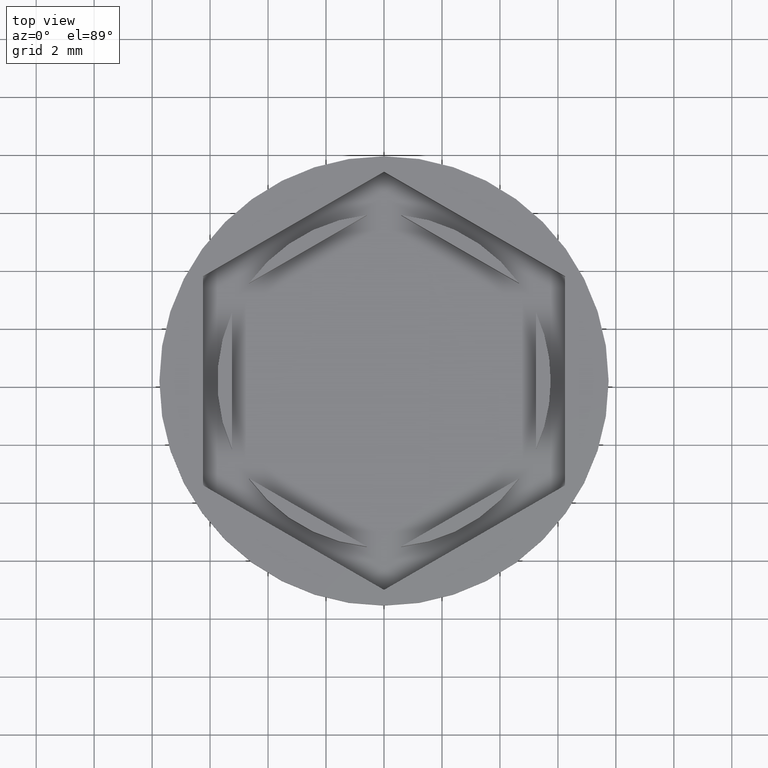
[diagram: clean part render]
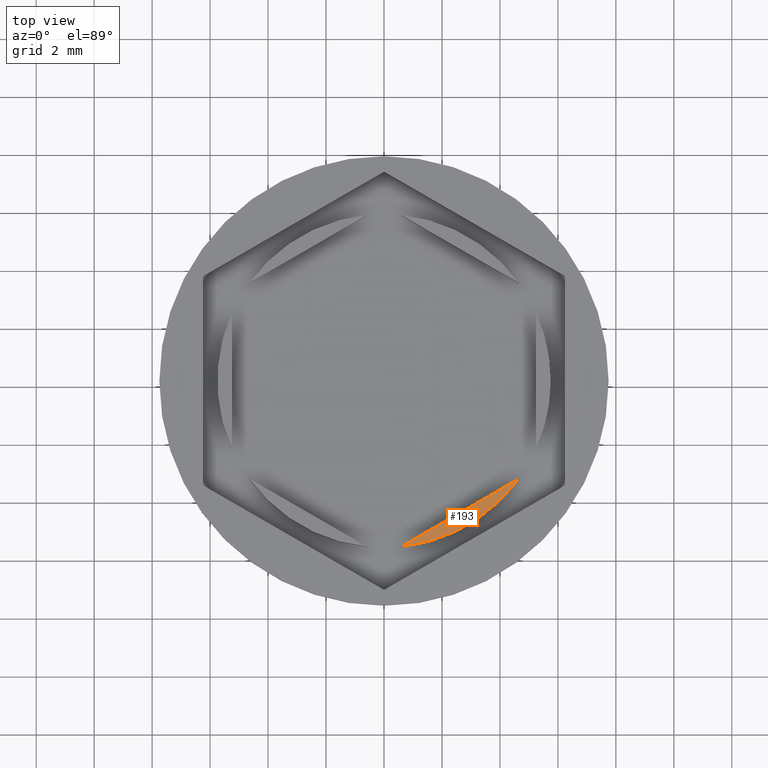
[diagram: same view with one face highlighted and labeled with its STEP entity id]
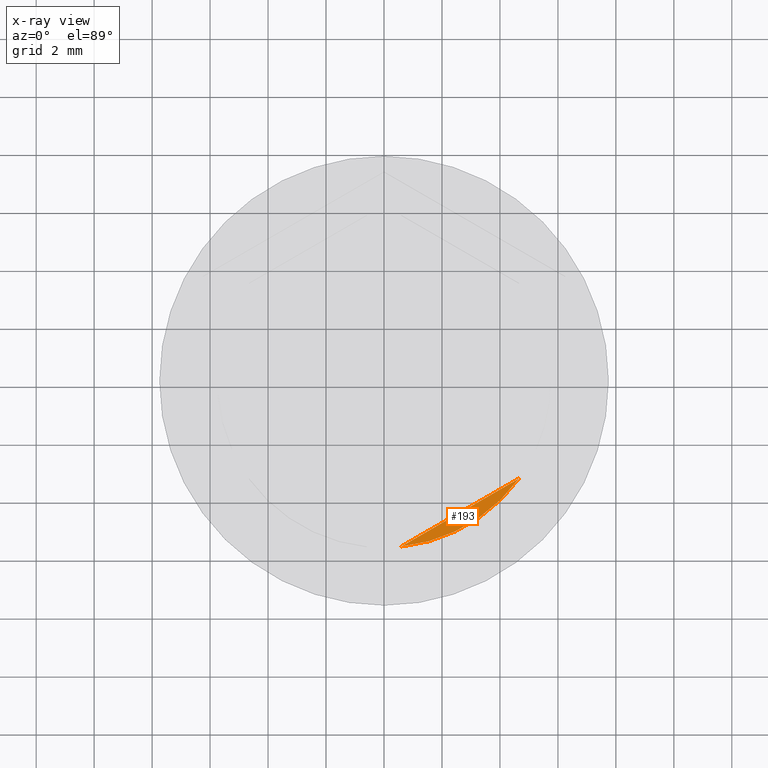
[diagram: x-ray of the same camera — body ghosted, the highlighted face saturated]
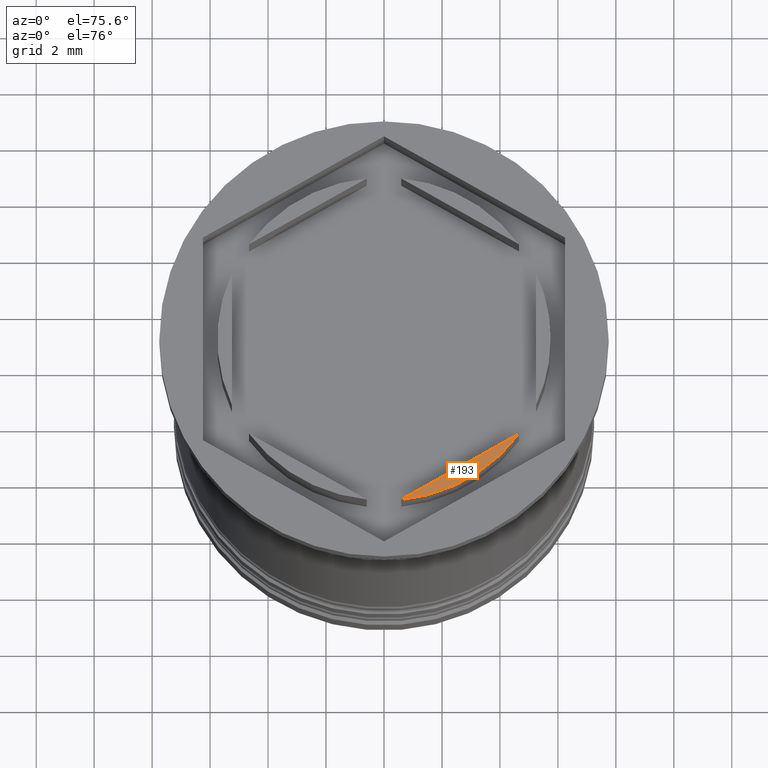
[diagram: same view with one face highlighted and labeled with its STEP entity id]
A machine part, top view. The second image highlights one B-rep face of the part: STEP entity #193.
The next image is the same camera in x-ray: the body ghosted, the highlighted face saturated — about 0% of this face is hidden behind the body in this view.
A second angle (auxiliary view) of the same face is appended — the face is thin or edge-on in the first view.
In plain terms, the highlighted planar face has unit normal (0, -0, 1).
Its self-contained STEP definition (entity closure, byte-faithful):
#105 = AXIS2_PLACEMENT_3D ( 'NONE', #1697, #908, #1518 ) ;
#193 = ADVANCED_FACE ( 'NONE', ( #194 ), #1441, .T. ) ;
#194 = FACE_OUTER_BOUND ( 'NONE', #244, .T. ) ;
#244 = EDGE_LOOP ( 'NONE', ( #1296, #250 ) ) ;
#250 = ORIENTED_EDGE ( 'NONE', *, *, #481, .T. ) ;
#381 = DIRECTION ( 'NONE',  ( 0.000000000000000000, -0.000000000000000000, 1.000000000000000000 ) ) ;
#461 = CARTESIAN_POINT ( 'NONE',  ( 0.5939903988410097924, -5.719237309824159787, 0.000000000000000000 ) ) ;
#481 = EDGE_CURVE ( 'NONE', #878, #1265, #1552, .T. ) ;
#567 = VECTOR ( 'NONE', #576, 1000.000000000000000 ) ;
#576 = DIRECTION ( 'NONE',  ( 0.8660254037844385966, 0.5000000000000001110, 0.000000000000000000 ) ) ;
#773 = CARTESIAN_POINT ( 'NONE',  ( 0.000000000000000000, 0.000000000000000000, 0.000000000000000000 ) ) ;
#862 = LINE ( 'NONE', #1014, #567 ) ;
#878 = VERTEX_POINT ( 'NONE', #461 ) ;
#908 = DIRECTION ( 'NONE',  ( -0.000000000000000000, 0.000000000000000000, 1.000000000000000000 ) ) ;
#911 = AXIS2_PLACEMENT_3D ( 'NONE', #773, #381, #1529 ) ;
#1014 = CARTESIAN_POINT ( 'NONE',  ( 2.625000000000000000, -4.546633369868302132, 0.000000000000000000 ) ) ;
#1150 = EDGE_CURVE ( 'NONE', #878, #1265, #862, .T. ) ;
#1235 = CARTESIAN_POINT ( 'NONE',  ( 4.656009601158991096, -3.374029429912444478, 0.000000000000000000 ) ) ;
#1265 = VERTEX_POINT ( 'NONE', #1235 ) ;
#1296 = ORIENTED_EDGE ( 'NONE', *, *, #1150, .F. ) ;
#1441 = PLANE ( 'NONE',  #911 ) ;
#1518 = DIRECTION ( 'NONE',  ( 1.000000000000000000, 0.000000000000000000, 0.000000000000000000 ) ) ;
#1529 = DIRECTION ( 'NONE',  ( 1.000000000000000000, 0.000000000000000000, 0.000000000000000000 ) ) ;
#1552 = CIRCLE ( 'NONE', #105, 5.750000000000000000 ) ;
#1697 = CARTESIAN_POINT ( 'NONE',  ( 0.000000000000000000, 0.000000000000000000, 0.000000000000000000 ) ) ;